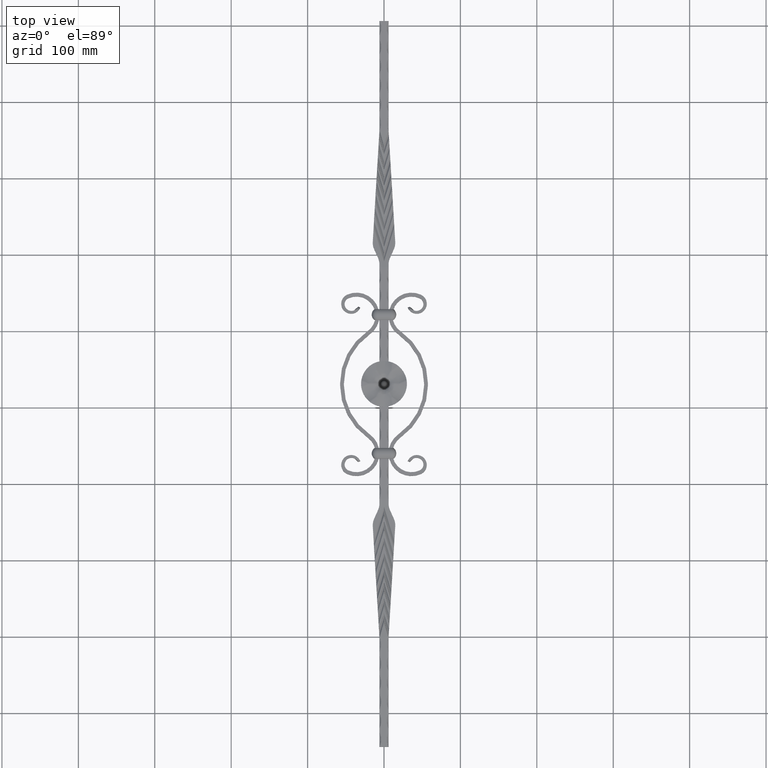
[diagram: clean part render]
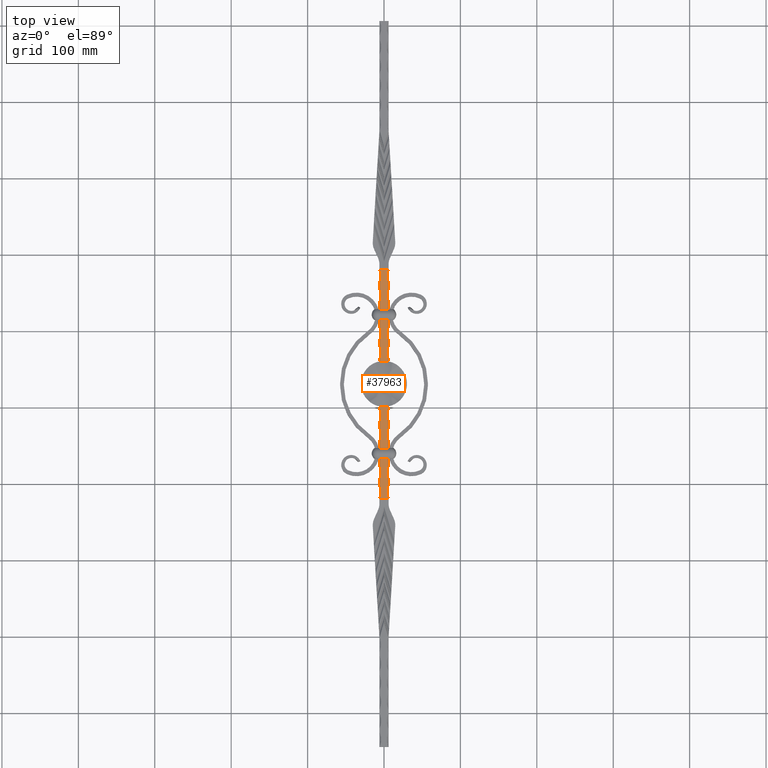
[diagram: same view with one face highlighted and labeled with its STEP entity id]
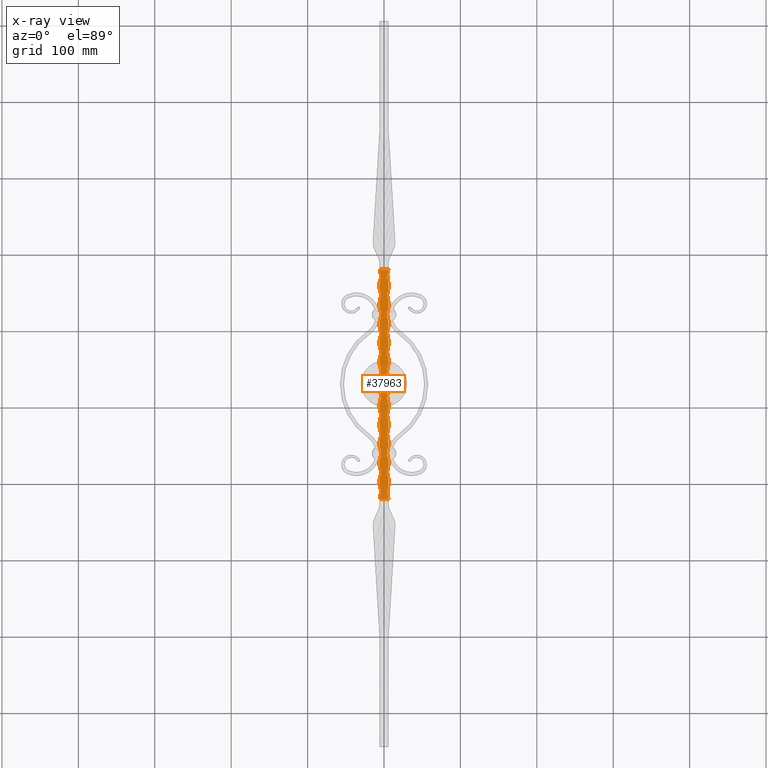
[diagram: x-ray of the same camera — body ghosted, the highlighted face saturated]
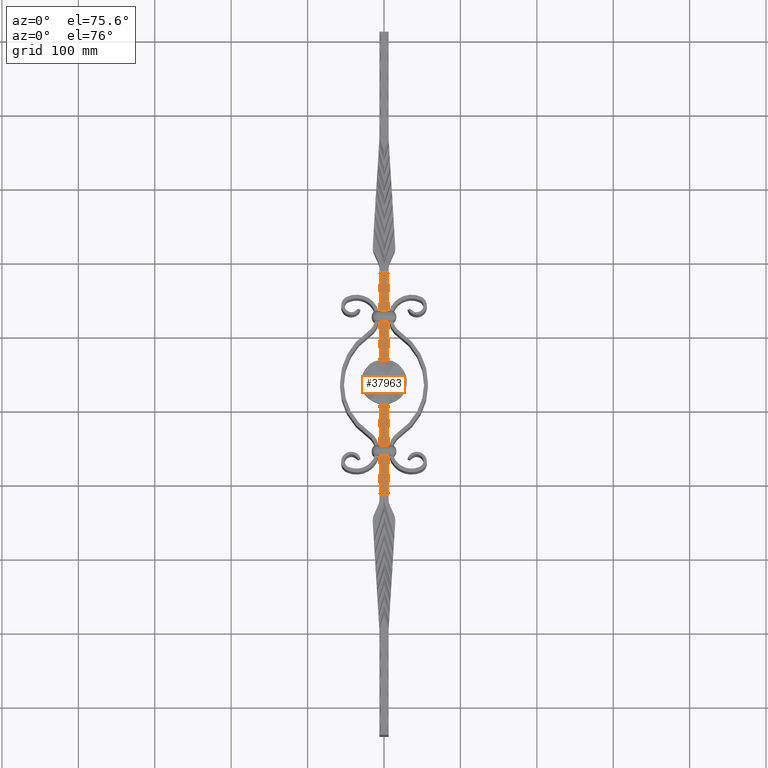
[diagram: same view with one face highlighted and labeled with its STEP entity id]
A machine part, top view. The second image highlights one B-rep face of the part: STEP entity #37963.
The next image is the same camera in x-ray: the body ghosted, the highlighted face saturated — about 0% of this face is hidden behind the body in this view.
A second angle (auxiliary view) of the same face is appended — the face is thin or edge-on in the first view.
In plain terms, the highlighted planar face has unit normal (0, 0, -1).
Its self-contained STEP definition (entity closure, byte-faithful):
#68 = ORIENTED_EDGE ( 'NONE', *, *, #21465, .T. ) ;
#285 = CARTESIAN_POINT ( 'NONE',  ( 30.00000000000001066, 515.0000000000000000, 5.999999999999986677 ) ) ;
#314 = VECTOR ( 'NONE', #4742, 1000.000000000000000 ) ;
#387 = VERTEX_POINT ( 'NONE', #28491 ) ;
#464 = AXIS2_PLACEMENT_3D ( 'NONE', #27704, #45721, #23917 ) ;
#523 = AXIS2_PLACEMENT_3D ( 'NONE', #285, #4230, #10890 ) ;
#950 = ORIENTED_EDGE ( 'NONE', *, *, #15052, .T. ) ;
#1014 = CARTESIAN_POINT ( 'NONE',  ( -6.000000000000001776, 450.0000000000021600, 6.000000000000012434 ) ) ;
#1157 = LINE ( 'NONE', #38857, #30017 ) ;
#1213 = ORIENTED_EDGE ( 'NONE', *, *, #41892, .T. ) ;
#1277 = CARTESIAN_POINT ( 'NONE',  ( -6.000000000000001776, 637.0799999999978809, 6.000000000000012434 ) ) ;
#1306 = DIRECTION ( 'NONE',  ( 0.000000000000000000, 0.000000000000000000, -1.000000000000000000 ) ) ;
#1316 = CARTESIAN_POINT ( 'NONE',  ( -6.000000000000001776, 455.0000000000000000, 5.999999999999065636 ) ) ;
#1520 = EDGE_CURVE ( 'NONE', #46279, #28511, #44600, .T. ) ;
#1544 = CARTESIAN_POINT ( 'NONE',  ( 6.000000000000001776, 455.0000000000000000, 6.000000000000012434 ) ) ;
#1814 = CARTESIAN_POINT ( 'NONE',  ( 6.000000000000001776, 531.0399999999999636, 5.999999999999999112 ) ) ;
#2017 = DIRECTION ( 'NONE',  ( -0.000000000000000000, 1.000000000000000000, -0.000000000000000000 ) ) ;
#2166 = ORIENTED_EDGE ( 'NONE', *, *, #21296, .F. ) ;
#2178 = ORIENTED_EDGE ( 'NONE', *, *, #35360, .F. ) ;
#2223 = VERTEX_POINT ( 'NONE', #40970 ) ;
#2801 = ORIENTED_EDGE ( 'NONE', *, *, #38667, .T. ) ;
#2822 = AXIS2_PLACEMENT_3D ( 'NONE', #20499, #45780, #45151 ) ;
#2825 = DIRECTION ( 'NONE',  ( -1.000000000000000000, 4.270088556250601108E-15, 0.000000000000000000 ) ) ;
#2826 = CARTESIAN_POINT ( 'NONE',  ( -6.000000000000001776, 632.0799999999998136, 5.999999999999118039 ) ) ;
#2889 = FACE_OUTER_BOUND ( 'NONE', #31284, .T. ) ;
#2898 = CARTESIAN_POINT ( 'NONE',  ( -5.593232469096428794, 381.0384321297871679, 5.999999999999231726 ) ) ;
#2903 = ORIENTED_EDGE ( 'NONE', *, *, #44691, .T. ) ;
#3013 = DIRECTION ( 'NONE',  ( -0.000000000000000000, 1.000000000000000000, -0.000000000000000000 ) ) ;
#3055 = LINE ( 'NONE', #16602, #4788 ) ;
#3060 = CARTESIAN_POINT ( 'NONE',  ( 6.000000000000001776, 531.0399999999999636, 5.999999999999999112 ) ) ;
#3143 = CARTESIAN_POINT ( 'NONE',  ( 6.000000000000001776, 405.0000000000000000, 6.000000000000012434 ) ) ;
#3269 = EDGE_CURVE ( 'NONE', #23279, #4831, #37709, .T. ) ;
#3301 = DIRECTION ( 'NONE',  ( -1.000000000000000000, -4.270088556250601108E-15, 0.000000000000000000 ) ) ;
#3384 = EDGE_CURVE ( 'NONE', #36348, #16617, #7244, .T. ) ;
#3401 = DIRECTION ( 'NONE',  ( -0.000000000000000000, 1.000000000000000000, -0.000000000000000000 ) ) ;
#3433 = ORIENTED_EDGE ( 'NONE', *, *, #17195, .T. ) ;
#3482 = DIRECTION ( 'NONE',  ( -1.000000000000000000, 0.000000000000000000, 0.000000000000000000 ) ) ;
#3617 = CARTESIAN_POINT ( 'NONE',  ( 6.000000000000001776, 430.0000000000000568, 6.000000000000012434 ) ) ;
#4037 = VERTEX_POINT ( 'NONE', #42055 ) ;
#4176 = VERTEX_POINT ( 'NONE', #3143 ) ;
#4221 = VERTEX_POINT ( 'NONE', #10736 ) ;
#4230 = DIRECTION ( 'NONE',  ( -0.000000000000000000, -0.000000000000000000, 1.000000000000000000 ) ) ;
#4323 = ORIENTED_EDGE ( 'NONE', *, *, #38616, .F. ) ;
#4459 = EDGE_CURVE ( 'NONE', #45011, #44063, #9466, .T. ) ;
#4509 = CARTESIAN_POINT ( 'NONE',  ( 5.593232469096428794, 381.0384321297871679, 5.999999999999993783 ) ) ;
#4551 = CARTESIAN_POINT ( 'NONE',  ( -6.000000000000001776, 505.0000000000000000, 5.999999999998961719 ) ) ;
#4584 = EDGE_CURVE ( 'NONE', #8706, #8706, #37137, .T. ) ;
#4742 = DIRECTION ( 'NONE',  ( -0.000000000000000000, -1.000000000000000000, -0.000000000000000000 ) ) ;
#4788 = VECTOR ( 'NONE', #37594, 1000.000000000000000 ) ;
#4830 = LINE ( 'NONE', #28642, #23524 ) ;
#4831 = VERTEX_POINT ( 'NONE', #4509 ) ;
#4852 = CARTESIAN_POINT ( 'NONE',  ( 6.000000000000001776, 582.0799999999999272, 6.000000000000012434 ) ) ;
#5265 = LINE ( 'NONE', #38354, #14325 ) ;
#5360 = DIRECTION ( 'NONE',  ( -1.000000000000000000, 0.000000000000000000, 0.000000000000000000 ) ) ;
#5725 = CIRCLE ( 'NONE', #44572, 26.00000000000000711 ) ;
#5830 = AXIS2_PLACEMENT_3D ( 'NONE', #44304, #1306, #26592 ) ;
#6115 = AXIS2_PLACEMENT_3D ( 'NONE', #28690, #17659, #42909 ) ;
#6254 = VECTOR ( 'NONE', #3013, 1000.000000000000000 ) ;
#6325 = DIRECTION ( 'NONE',  ( -0.000000000000000000, 1.000000000000000000, -0.000000000000000000 ) ) ;
#6454 = DIRECTION ( 'NONE',  ( -1.000000000000000000, 0.000000000000000000, 0.000000000000000000 ) ) ;
#6684 = EDGE_CURVE ( 'NONE', #25505, #44063, #12091, .T. ) ;
#6785 = EDGE_CURVE ( 'NONE', #4037, #38848, #38153, .T. ) ;
#7244 = LINE ( 'NONE', #24908, #21901 ) ;
#7666 = VERTEX_POINT ( 'NONE', #26324 ) ;
#7747 = EDGE_CURVE ( 'NONE', #46279, #4831, #5265, .T. ) ;
#7758 = EDGE_CURVE ( 'NONE', #17215, #4221, #13736, .T. ) ;
#8487 = ORIENTED_EDGE ( 'NONE', *, *, #27450, .F. ) ;
#8497 = CIRCLE ( 'NONE', #45126, 26.00000000000000711 ) ;
#8656 = CARTESIAN_POINT ( 'NONE',  ( -5.999999999999998224, 531.0399999999999636, 5.999999999999999112 ) ) ;
#8706 = VERTEX_POINT ( 'NONE', #11956 ) ;
#8959 = ORIENTED_EDGE ( 'NONE', *, *, #7747, .T. ) ;
#8969 = CARTESIAN_POINT ( 'NONE',  ( 30.00000000000001066, 490.0000000000000568, 5.999999999999988454 ) ) ;
#9004 = EDGE_CURVE ( 'NONE', #7666, #38848, #28374, .T. ) ;
#9088 = CIRCLE ( 'NONE', #27693, 26.00000000000000711 ) ;
#9139 = CARTESIAN_POINT ( 'NONE',  ( 6.000000000000001776, 662.0799999999999272, 5.999999999999984901 ) ) ;
#9159 = ORIENTED_EDGE ( 'NONE', *, *, #6684, .T. ) ;
#9214 = ORIENTED_EDGE ( 'NONE', *, *, #11553, .F. ) ;
#9302 = EDGE_CURVE ( 'NONE', #25640, #4221, #39483, .T. ) ;
#9379 = CARTESIAN_POINT ( 'NONE',  ( -6.000000000000001776, 475.0000000000022737, 6.000000000000012434 ) ) ;
#9444 = ORIENTED_EDGE ( 'NONE', *, *, #4584, .F. ) ;
#9449 = CARTESIAN_POINT ( 'NONE',  ( 30.00000000000001066, 390.0000000000000000, 5.999999999999993783 ) ) ;
#9466 = LINE ( 'NONE', #36272, #42806 ) ;
#9719 = CARTESIAN_POINT ( 'NONE',  ( -30.00000000000001066, 597.0799999999998136, 5.999999999999075406 ) ) ;
#9739 = FACE_BOUND ( 'NONE', #23335, .T. ) ;
#9883 = CARTESIAN_POINT ( 'NONE',  ( 6.000000000000001776, 531.0399999999999636, 5.999999999999999112 ) ) ;
#10022 = DIRECTION ( 'NONE',  ( -1.000000000000000000, 0.000000000000000000, 0.000000000000000000 ) ) ;
#10121 = EDGE_CURVE ( 'NONE', #17215, #16423, #22130, .T. ) ;
#10224 = VERTEX_POINT ( 'NONE', #30976 ) ;
#10617 = VERTEX_POINT ( 'NONE', #27926 ) ;
#10641 = ORIENTED_EDGE ( 'NONE', *, *, #37062, .T. ) ;
#10736 = CARTESIAN_POINT ( 'NONE',  ( -6.000000000000001776, 500.0000000000024443, 6.000000000000012434 ) ) ;
#10890 = DIRECTION ( 'NONE',  ( -1.000000000000000000, 0.000000000000000000, 0.000000000000000000 ) ) ;
#10935 = EDGE_CURVE ( 'NONE', #13003, #12000, #8497, .T. ) ;
#11226 = EDGE_CURVE ( 'NONE', #43411, #25505, #22635, .T. ) ;
#11323 = AXIS2_PLACEMENT_3D ( 'NONE', #14036, #43417, #46589 ) ;
#11329 = DIRECTION ( 'NONE',  ( -0.000000000000000000, -1.000000000000000000, -0.000000000000000000 ) ) ;
#11356 = VECTOR ( 'NONE', #28359, 1000.000000000000000 ) ;
#11454 = CARTESIAN_POINT ( 'NONE',  ( 6.000000000000001776, 475.0000000000000568, 5.999999999999980460 ) ) ;
#11553 = EDGE_CURVE ( 'NONE', #10617, #2223, #25444, .T. ) ;
#11602 = AXIS2_PLACEMENT_3D ( 'NONE', #28243, #28389, #38991 ) ;
#11625 = EDGE_CURVE ( 'NONE', #13637, #12431, #17534, .T. ) ;
#11691 = ORIENTED_EDGE ( 'NONE', *, *, #1520, .F. ) ;
#11803 = CIRCLE ( 'NONE', #2822, 26.00000000000000711 ) ;
#11874 = CARTESIAN_POINT ( 'NONE',  ( 30.00000000000001066, 440.0000000000000568, 5.999999999999991118 ) ) ;
#11956 = CARTESIAN_POINT ( 'NONE',  ( -3.714057980637027523, 531.0400000000001910, 6.000000000000002665 ) ) ;
#12000 = VERTEX_POINT ( 'NONE', #9379 ) ;
#12091 = CIRCLE ( 'NONE', #11323, 26.00000000000000711 ) ;
#12140 = ORIENTED_EDGE ( 'NONE', *, *, #3269, .F. ) ;
#12268 = CARTESIAN_POINT ( 'NONE',  ( 6.000000000000001776, 531.0399999999999636, 5.999999999999999112 ) ) ;
#12283 = CARTESIAN_POINT ( 'NONE',  ( 6.000000000000001776, 525.0000000000000000, 5.999999999999977796 ) ) ;
#12431 = VERTEX_POINT ( 'NONE', #12283 ) ;
#12575 = DIRECTION ( 'NONE',  ( -0.000000000000000000, -0.000000000000000000, 1.000000000000000000 ) ) ;
#12692 = CARTESIAN_POINT ( 'NONE',  ( 30.00000000000001066, 465.0000000000000000, 5.999999999999989342 ) ) ;
#12856 = VECTOR ( 'NONE', #26799, 1000.000000000000000 ) ;
#13003 = VERTEX_POINT ( 'NONE', #1316 ) ;
#13082 = ORIENTED_EDGE ( 'NONE', *, *, #46003, .T. ) ;
#13339 = VERTEX_POINT ( 'NONE', #1277 ) ;
#13358 = AXIS2_PLACEMENT_3D ( 'NONE', #26787, #26947, #31074 ) ;
#13530 = VECTOR ( 'NONE', #24401, 1000.000000000000000 ) ;
#13576 = ORIENTED_EDGE ( 'NONE', *, *, #41781, .F. ) ;
#13632 = LINE ( 'NONE', #17150, #14221 ) ;
#13637 = VERTEX_POINT ( 'NONE', #43437 ) ;
#13736 = LINE ( 'NONE', #28208, #27900 ) ;
#13757 = VERTEX_POINT ( 'NONE', #22593 ) ;
#14036 = CARTESIAN_POINT ( 'NONE',  ( 30.00000000000001066, 672.0799999999999272, 5.999999999999993783 ) ) ;
#14070 = CIRCLE ( 'NONE', #11602, 26.00000000000000711 ) ;
#14075 = EDGE_CURVE ( 'NONE', #16365, #4176, #14070, .T. ) ;
#14154 = DIRECTION ( 'NONE',  ( 1.000000000000000000, 0.000000000000000000, 0.000000000000000000 ) ) ;
#14211 = VECTOR ( 'NONE', #11329, 1000.000000000000000 ) ;
#14221 = VECTOR ( 'NONE', #35120, 1000.000000000000000 ) ;
#14325 = VECTOR ( 'NONE', #45602, 1000.000000000000000 ) ;
#14472 = EDGE_CURVE ( 'NONE', #387, #36046, #32755, .T. ) ;
#14540 = LINE ( 'NONE', #8656, #26435 ) ;
#14635 = ORIENTED_EDGE ( 'NONE', *, *, #9004, .T. ) ;
#14849 = CIRCLE ( 'NONE', #6115, 26.00000000000000711 ) ;
#14871 = AXIS2_PLACEMENT_3D ( 'NONE', #9719, #42558, #10022 ) ;
#14971 = VECTOR ( 'NONE', #17564, 1000.000000000000000 ) ;
#15052 = EDGE_CURVE ( 'NONE', #25468, #16487, #37216, .T. ) ;
#15201 = EDGE_CURVE ( 'NONE', #36348, #13339, #42298, .T. ) ;
#15608 = LINE ( 'NONE', #40149, #314 ) ;
#15614 = ORIENTED_EDGE ( 'NONE', *, *, #23048, .T. ) ;
#15660 = LINE ( 'NONE', #12268, #12856 ) ;
#15821 = ORIENTED_EDGE ( 'NONE', *, *, #15201, .T. ) ;
#15857 = DIRECTION ( 'NONE',  ( -0.000000000000000000, -0.000000000000000000, 1.000000000000000000 ) ) ;
#16078 = CARTESIAN_POINT ( 'NONE',  ( -6.000000000000001776, 582.0799999999999272, 5.999999999999014122 ) ) ;
#16082 = DIRECTION ( 'NONE',  ( -0.000000000000000000, -0.000000000000000000, 1.000000000000000000 ) ) ;
#16092 = ORIENTED_EDGE ( 'NONE', *, *, #4459, .F. ) ;
#16133 = DIRECTION ( 'NONE',  ( -1.000000000000000000, 0.000000000000000000, 0.000000000000000000 ) ) ;
#16216 = AXIS2_PLACEMENT_3D ( 'NONE', #32067, #17707, #3301 ) ;
#16278 = VERTEX_POINT ( 'NONE', #18652 ) ;
#16365 = VERTEX_POINT ( 'NONE', #40587 ) ;
#16423 = VERTEX_POINT ( 'NONE', #33614 ) ;
#16442 = CARTESIAN_POINT ( 'NONE',  ( -6.000000000000001776, 400.0000000000018758, 6.000000000000012434 ) ) ;
#16487 = VERTEX_POINT ( 'NONE', #19565 ) ;
#16602 = CARTESIAN_POINT ( 'NONE',  ( 6.000000000000001776, 531.0399999999999636, 5.999999999999999112 ) ) ;
#16617 = VERTEX_POINT ( 'NONE', #35661 ) ;
#16747 = ORIENTED_EDGE ( 'NONE', *, *, #3384, .F. ) ;
#16787 = VERTEX_POINT ( 'NONE', #33094 ) ;
#17044 = VERTEX_POINT ( 'NONE', #23626 ) ;
#17150 = CARTESIAN_POINT ( 'NONE',  ( -5.999999999999998224, 531.0399999999999636, 5.999999999999999112 ) ) ;
#17176 = DIRECTION ( 'NONE',  ( -0.000000000000000000, -1.000000000000000000, -0.000000000000000000 ) ) ;
#17178 = VECTOR ( 'NONE', #41681, 1000.000000000000000 ) ;
#17195 = EDGE_CURVE ( 'NONE', #13003, #46107, #4830, .T. ) ;
#17215 = VERTEX_POINT ( 'NONE', #4551 ) ;
#17254 = CARTESIAN_POINT ( 'NONE',  ( 6.000000000000001776, 531.0399999999999636, 5.999999999999999112 ) ) ;
#17534 = LINE ( 'NONE', #35150, #41257 ) ;
#17552 = DIRECTION ( 'NONE',  ( -0.000000000000000000, 1.000000000000000000, -0.000000000000000000 ) ) ;
#17564 = DIRECTION ( 'NONE',  ( -0.000000000000000000, 1.000000000000000000, -0.000000000000000000 ) ) ;
#17659 = DIRECTION ( 'NONE',  ( 0.000000000000000000, 0.000000000000000000, -1.000000000000000000 ) ) ;
#17707 = DIRECTION ( 'NONE',  ( 0.000000000000000000, 0.000000000000000000, -1.000000000000000000 ) ) ;
#17954 = ORIENTED_EDGE ( 'NONE', *, *, #44737, .T. ) ;
#17960 = ORIENTED_EDGE ( 'NONE', *, *, #18456, .F. ) ;
#18152 = ORIENTED_EDGE ( 'NONE', *, *, #29865, .F. ) ;
#18208 = CARTESIAN_POINT ( 'NONE',  ( -5.593232469096428794, 681.0415678702127025, 5.999999999999231726 ) ) ;
#18399 = VERTEX_POINT ( 'NONE', #1544 ) ;
#18456 = EDGE_CURVE ( 'NONE', #36508, #10617, #3055, .T. ) ;
#18587 = CARTESIAN_POINT ( 'NONE',  ( -6.000000000000001776, 425.0000000000019895, 6.000000000000012434 ) ) ;
#18652 = CARTESIAN_POINT ( 'NONE',  ( 6.000000000000001776, 587.0799999999998136, 5.999999999999980460 ) ) ;
#18656 = VERTEX_POINT ( 'NONE', #11454 ) ;
#18784 = LINE ( 'NONE', #44156, #44788 ) ;
#18785 = VECTOR ( 'NONE', #6325, 1000.000000000000000 ) ;
#19304 = VERTEX_POINT ( 'NONE', #4852 ) ;
#19325 = CARTESIAN_POINT ( 'NONE',  ( 6.000000000000001776, 637.0799999999998136, 5.999999999999983125 ) ) ;
#19340 = PLANE ( 'NONE',  #5830 ) ;
#19494 = CARTESIAN_POINT ( 'NONE',  ( 6.000000000000001776, 505.0000000000000000, 6.000000000000012434 ) ) ;
#19527 = VERTEX_POINT ( 'NONE', #20506 ) ;
#19565 = CARTESIAN_POINT ( 'NONE',  ( -6.000000000000001776, 562.0799999999974261, 6.000000000000012434 ) ) ;
#19627 = EDGE_CURVE ( 'NONE', #29877, #43411, #14849, .T. ) ;
#19774 = LINE ( 'NONE', #24694, #6254 ) ;
#19851 = EDGE_CURVE ( 'NONE', #13757, #10224, #43093, .T. ) ;
#20014 = ORIENTED_EDGE ( 'NONE', *, *, #37482, .T. ) ;
#20199 = CIRCLE ( 'NONE', #26217, 26.00000000000000711 ) ;
#20236 = DIRECTION ( 'NONE',  ( -1.000000000000000000, 4.270088556250601108E-15, 0.000000000000000000 ) ) ;
#20348 = ORIENTED_EDGE ( 'NONE', *, *, #40093, .T. ) ;
#20499 = CARTESIAN_POINT ( 'NONE',  ( -30.00000000000001066, 672.0799999999999272, 5.999999999999231726 ) ) ;
#20506 = CARTESIAN_POINT ( 'NONE',  ( -6.000000000000001776, 537.0799999999974261, 6.000000000000012434 ) ) ;
#20783 = AXIS2_PLACEMENT_3D ( 'NONE', #27499, #38586, #2825 ) ;
#21017 = DIRECTION ( 'NONE',  ( -1.000000000000000000, 4.270088556250601108E-15, 0.000000000000000000 ) ) ;
#21020 = EDGE_CURVE ( 'NONE', #4176, #23279, #41385, .T. ) ;
#21051 = ORIENTED_EDGE ( 'NONE', *, *, #24691, .T. ) ;
#21182 = AXIS2_PLACEMENT_3D ( 'NONE', #26700, #41082, #37312 ) ;
#21204 = ORIENTED_EDGE ( 'NONE', *, *, #7758, .T. ) ;
#21274 = CARTESIAN_POINT ( 'NONE',  ( -6.000000000000001776, 480.0000000000000568, 5.999999999999014122 ) ) ;
#21296 = EDGE_CURVE ( 'NONE', #32186, #16365, #18784, .T. ) ;
#21465 = EDGE_CURVE ( 'NONE', #19527, #16423, #13632, .T. ) ;
#21793 = CARTESIAN_POINT ( 'NONE',  ( -5.999999999999998224, 531.0399999999999636, 5.999999999999999112 ) ) ;
#21901 = VECTOR ( 'NONE', #3401, 1000.000000000000000 ) ;
#22130 = CIRCLE ( 'NONE', #21182, 26.00000000000000711 ) ;
#22182 = VECTOR ( 'NONE', #35182, 1000.000000000000000 ) ;
#22506 = LINE ( 'NONE', #1814, #43983 ) ;
#22593 = CARTESIAN_POINT ( 'NONE',  ( -6.000000000000001776, 607.0799999999998136, 5.999999999999065636 ) ) ;
#22635 = LINE ( 'NONE', #23698, #42971 ) ;
#22804 = DIRECTION ( 'NONE',  ( -1.000000000000000000, 0.000000000000000000, 0.000000000000000000 ) ) ;
#22863 = CIRCLE ( 'NONE', #38502, 26.00000000000000711 ) ;
#22930 = ORIENTED_EDGE ( 'NONE', *, *, #9302, .F. ) ;
#23048 = EDGE_CURVE ( 'NONE', #40497, #19304, #9088, .T. ) ;
#23279 = VERTEX_POINT ( 'NONE', #26113 ) ;
#23335 = EDGE_LOOP ( 'NONE', ( #9444 ) ) ;
#23524 = VECTOR ( 'NONE', #44214, 1000.000000000000000 ) ;
#23626 = CARTESIAN_POINT ( 'NONE',  ( 6.000000000000001776, 632.0799999999998136, 6.000000000000012434 ) ) ;
#23687 = DIRECTION ( 'NONE',  ( -0.000000000000000000, -0.000000000000000000, 1.000000000000000000 ) ) ;
#23698 = CARTESIAN_POINT ( 'NONE',  ( 6.000000000000001776, 531.0399999999999636, 5.999999999999999112 ) ) ;
#23917 = DIRECTION ( 'NONE',  ( -1.000000000000000000, -2.135044278125300554E-15, 0.000000000000000000 ) ) ;
#24001 = EDGE_CURVE ( 'NONE', #25468, #10224, #42542, .T. ) ;
#24014 = DIRECTION ( 'NONE',  ( -0.000000000000000000, -0.000000000000000000, 1.000000000000000000 ) ) ;
#24401 = DIRECTION ( 'NONE',  ( -0.000000000000000000, 1.000000000000000000, -0.000000000000000000 ) ) ;
#24486 = EDGE_CURVE ( 'NONE', #18399, #16787, #26645, .T. ) ;
#24494 = CIRCLE ( 'NONE', #34163, 26.00000000000000711 ) ;
#24655 = CARTESIAN_POINT ( 'NONE',  ( -6.000000000000001776, 612.0799999999977672, 6.000000000000012434 ) ) ;
#24691 = EDGE_CURVE ( 'NONE', #16278, #387, #35141, .T. ) ;
#24694 = CARTESIAN_POINT ( 'NONE',  ( -5.999999999999998224, 531.0399999999999636, 5.999999999999999112 ) ) ;
#24908 = CARTESIAN_POINT ( 'NONE',  ( -5.999999999999998224, 531.0399999999999636, 5.999999999999999112 ) ) ;
#25200 = AXIS2_PLACEMENT_3D ( 'NONE', #9449, #16082, #26952 ) ;
#25444 = CIRCLE ( 'NONE', #32109, 26.00000000000000711 ) ;
#25468 = VERTEX_POINT ( 'NONE', #16078 ) ;
#25505 = VERTEX_POINT ( 'NONE', #9139 ) ;
#25640 = VERTEX_POINT ( 'NONE', #21274 ) ;
#26042 = EDGE_CURVE ( 'NONE', #13757, #45956, #19774, .T. ) ;
#26113 = CARTESIAN_POINT ( 'NONE',  ( 6.000000000000001776, 400.0000000000000000, 5.999999999999984901 ) ) ;
#26217 = AXIS2_PLACEMENT_3D ( 'NONE', #12692, #31192, #27393 ) ;
#26320 = DIRECTION ( 'NONE',  ( -0.000000000000000000, 1.000000000000000000, -0.000000000000000000 ) ) ;
#26324 = CARTESIAN_POINT ( 'NONE',  ( -6.000000000000001776, 430.0000000000000568, 5.999999999999118039 ) ) ;
#26435 = VECTOR ( 'NONE', #26320, 1000.000000000000000 ) ;
#26543 = DIRECTION ( 'NONE',  ( 0.000000000000000000, 0.000000000000000000, -1.000000000000000000 ) ) ;
#26592 = DIRECTION ( 'NONE',  ( -1.000000000000000000, 0.000000000000000000, -0.000000000000000000 ) ) ;
#26645 = LINE ( 'NONE', #3060, #11356 ) ;
#26700 = CARTESIAN_POINT ( 'NONE',  ( -30.00000000000001066, 515.0000000000000000, 5.999999999998971489 ) ) ;
#26725 = ORIENTED_EDGE ( 'NONE', *, *, #26042, .F. ) ;
#26787 = CARTESIAN_POINT ( 'NONE',  ( -30.00000000000001066, 622.0799999999998136, 5.999999999999127809 ) ) ;
#26799 = DIRECTION ( 'NONE',  ( -0.000000000000000000, 1.000000000000000000, -0.000000000000000000 ) ) ;
#26893 = CARTESIAN_POINT ( 'NONE',  ( 6.000000000000001776, 562.0799999999999272, 5.999999999999979572 ) ) ;
#26933 = CARTESIAN_POINT ( 'NONE',  ( 30.00000000000001066, 622.0799999999998136, 5.999999999999991118 ) ) ;
#26947 = DIRECTION ( 'NONE',  ( 0.000000000000000000, 0.000000000000000000, -1.000000000000000000 ) ) ;
#26952 = DIRECTION ( 'NONE',  ( -1.000000000000000000, 0.000000000000000000, 0.000000000000000000 ) ) ;
#27272 = AXIS2_PLACEMENT_3D ( 'NONE', #38249, #24014, #5360 ) ;
#27297 = CARTESIAN_POINT ( 'NONE',  ( 6.000000000000001776, 531.0399999999999636, 5.999999999999999112 ) ) ;
#27393 = DIRECTION ( 'NONE',  ( -1.000000000000000000, 0.000000000000000000, 0.000000000000000000 ) ) ;
#27450 = EDGE_CURVE ( 'NONE', #43681, #13339, #14540, .T. ) ;
#27499 = CARTESIAN_POINT ( 'NONE',  ( -30.00000000000001066, 572.0799999999999272, 5.999999999999023892 ) ) ;
#27552 = EDGE_CURVE ( 'NONE', #2223, #18656, #22506, .T. ) ;
#27693 = AXIS2_PLACEMENT_3D ( 'NONE', #34210, #41481, #37863 ) ;
#27704 = CARTESIAN_POINT ( 'NONE',  ( -30.00000000000001066, 415.0000000000000568, 5.999999999999179323 ) ) ;
#27896 = DIRECTION ( 'NONE',  ( -0.000000000000000000, -1.000000000000000000, -0.000000000000000000 ) ) ;
#27900 = VECTOR ( 'NONE', #27896, 1000.000000000000000 ) ;
#27926 = CARTESIAN_POINT ( 'NONE',  ( 6.000000000000001776, 500.0000000000000000, 5.999999999999979572 ) ) ;
#28208 = CARTESIAN_POINT ( 'NONE',  ( -5.999999999999998224, 531.0399999999999636, 5.999999999999999112 ) ) ;
#28243 = CARTESIAN_POINT ( 'NONE',  ( 30.00000000000001066, 415.0000000000000568, 5.999999999999992006 ) ) ;
#28359 = DIRECTION ( 'NONE',  ( -0.000000000000000000, -1.000000000000000000, -0.000000000000000000 ) ) ;
#28374 = LINE ( 'NONE', #21793, #14211 ) ;
#28389 = DIRECTION ( 'NONE',  ( -0.000000000000000000, -0.000000000000000000, 1.000000000000000000 ) ) ;
#28491 = CARTESIAN_POINT ( 'NONE',  ( 6.000000000000001776, 607.0799999999998136, 6.000000000000012434 ) ) ;
#28511 = VERTEX_POINT ( 'NONE', #16442 ) ;
#28559 = CIRCLE ( 'NONE', #36044, 26.00000000000000711 ) ;
#28642 = CARTESIAN_POINT ( 'NONE',  ( -5.999999999999998224, 531.0399999999999636, 5.999999999999999112 ) ) ;
#28690 = CARTESIAN_POINT ( 'NONE',  ( 30.00000000000001066, 647.0799999999999272, 5.999999999999992006 ) ) ;
#29865 = EDGE_CURVE ( 'NONE', #16787, #32186, #28559, .T. ) ;
#29877 = VERTEX_POINT ( 'NONE', #19325 ) ;
#30017 = VECTOR ( 'NONE', #17552, 1000.000000000000000 ) ;
#30373 = DIRECTION ( 'NONE',  ( -1.000000000000000000, 0.000000000000000000, 0.000000000000000000 ) ) ;
#30976 = CARTESIAN_POINT ( 'NONE',  ( -6.000000000000001776, 587.0799999999976535, 6.000000000000012434 ) ) ;
#31074 = DIRECTION ( 'NONE',  ( -1.000000000000000000, -4.270088556250601108E-15, 0.000000000000000000 ) ) ;
#31192 = DIRECTION ( 'NONE',  ( -0.000000000000000000, -0.000000000000000000, 1.000000000000000000 ) ) ;
#31284 = EDGE_LOOP ( 'NONE', ( #11691, #8959, #12140, #38589, #45258, #2166, #18152, #40803, #13576, #46899, #9214, #17960, #2178, #41549, #17954, #44914, #15614, #44161, #21051, #45091, #2801, #13082, #40533, #46898, #9159, #16092, #20348, #16747, #15821, #8487, #20014, #26725, #44605, #45672, #950, #4323, #10641, #68, #33321, #21204, #22930, #2903, #41477, #3433, #35836, #14635, #35597, #1213 ) ) ;
#31345 = DIRECTION ( 'NONE',  ( -0.000000000000000000, -1.000000000000000000, -0.000000000000000000 ) ) ;
#31565 = CARTESIAN_POINT ( 'NONE',  ( -30.00000000000001066, 490.0000000000000568, 5.999999999999023892 ) ) ;
#31717 = DIRECTION ( 'NONE',  ( -0.000000000000000000, -0.000000000000000000, 1.000000000000000000 ) ) ;
#32067 = CARTESIAN_POINT ( 'NONE',  ( -30.00000000000001066, 647.0799999999999272, 5.999999999999179323 ) ) ;
#32109 = AXIS2_PLACEMENT_3D ( 'NONE', #8969, #12575, #37853 ) ;
#32186 = VERTEX_POINT ( 'NONE', #3617 ) ;
#32410 = EDGE_CURVE ( 'NONE', #36729, #40497, #45953, .T. ) ;
#32755 = LINE ( 'NONE', #9883, #13530 ) ;
#33094 = CARTESIAN_POINT ( 'NONE',  ( 6.000000000000001776, 450.0000000000000568, 5.999999999999982236 ) ) ;
#33321 = ORIENTED_EDGE ( 'NONE', *, *, #10121, .F. ) ;
#33595 = CARTESIAN_POINT ( 'NONE',  ( 6.000000000000001776, 612.0799999999998136, 5.999999999999982236 ) ) ;
#33614 = CARTESIAN_POINT ( 'NONE',  ( -6.000000000000001776, 525.0000000000025011, 6.000000000000012434 ) ) ;
#33640 = CARTESIAN_POINT ( 'NONE',  ( 30.00000000000001066, 547.0799999999999272, 5.999999999999986677 ) ) ;
#33679 = CARTESIAN_POINT ( 'NONE',  ( 30.00000000000001066, 597.0799999999998136, 5.999999999999989342 ) ) ;
#34163 = AXIS2_PLACEMENT_3D ( 'NONE', #38420, #35223, #20236 ) ;
#34210 = CARTESIAN_POINT ( 'NONE',  ( 30.00000000000001066, 572.0799999999999272, 5.999999999999988454 ) ) ;
#34664 = DIRECTION ( 'NONE',  ( -0.000000000000000000, -1.000000000000000000, -0.000000000000000000 ) ) ;
#34802 = VERTEX_POINT ( 'NONE', #45909 ) ;
#35026 = DIRECTION ( 'NONE',  ( -1.000000000000000000, -4.270088556250601108E-15, 0.000000000000000000 ) ) ;
#35085 = AXIS2_PLACEMENT_3D ( 'NONE', #31565, #31717, #35026 ) ;
#35120 = DIRECTION ( 'NONE',  ( -0.000000000000000000, -1.000000000000000000, -0.000000000000000000 ) ) ;
#35141 = CIRCLE ( 'NONE', #43798, 26.00000000000000711 ) ;
#35150 = CARTESIAN_POINT ( 'NONE',  ( 6.000000000000001776, 531.0399999999999636, 5.999999999999999112 ) ) ;
#35182 = DIRECTION ( 'NONE',  ( -0.000000000000000000, -1.000000000000000000, -0.000000000000000000 ) ) ;
#35223 = DIRECTION ( 'NONE',  ( 0.000000000000000000, 0.000000000000000000, -1.000000000000000000 ) ) ;
#35238 = DIRECTION ( 'NONE',  ( -0.000000000000000000, -0.000000000000000000, 1.000000000000000000 ) ) ;
#35360 = EDGE_CURVE ( 'NONE', #12431, #36508, #37579, .T. ) ;
#35597 = ORIENTED_EDGE ( 'NONE', *, *, #6785, .F. ) ;
#35661 = CARTESIAN_POINT ( 'NONE',  ( -6.000000000000001776, 662.0799999999979946, 6.000000000000012434 ) ) ;
#35836 = ORIENTED_EDGE ( 'NONE', *, *, #45895, .F. ) ;
#35870 = CARTESIAN_POINT ( 'NONE',  ( -30.00000000000001066, 465.0000000000000000, 5.999999999999075406 ) ) ;
#36044 = AXIS2_PLACEMENT_3D ( 'NONE', #11874, #15857, #30373 ) ;
#36046 = VERTEX_POINT ( 'NONE', #33595 ) ;
#36272 = CARTESIAN_POINT ( 'NONE',  ( -5.999999999999998224, 681.0415678702127025, 6.000000000000002665 ) ) ;
#36348 = VERTEX_POINT ( 'NONE', #42464 ) ;
#36508 = VERTEX_POINT ( 'NONE', #19494 ) ;
#36729 = VERTEX_POINT ( 'NONE', #46029 ) ;
#37011 = LINE ( 'NONE', #17254, #14971 ) ;
#37062 = EDGE_CURVE ( 'NONE', #34802, #19527, #24494, .T. ) ;
#37137 = CIRCLE ( 'NONE', #44293, 3.714057980637027523 ) ;
#37216 = CIRCLE ( 'NONE', #20783, 26.00000000000000711 ) ;
#37312 = DIRECTION ( 'NONE',  ( -1.000000000000000000, -4.270088556250601108E-15, 0.000000000000000000 ) ) ;
#37482 = EDGE_CURVE ( 'NONE', #43681, #45956, #42538, .T. ) ;
#37579 = CIRCLE ( 'NONE', #523, 26.00000000000000711 ) ;
#37594 = DIRECTION ( 'NONE',  ( -0.000000000000000000, -1.000000000000000000, -0.000000000000000000 ) ) ;
#37709 = CIRCLE ( 'NONE', #25200, 26.00000000000000711 ) ;
#37853 = DIRECTION ( 'NONE',  ( -1.000000000000000000, 0.000000000000000000, 0.000000000000000000 ) ) ;
#37863 = DIRECTION ( 'NONE',  ( -1.000000000000000000, 0.000000000000000000, 0.000000000000000000 ) ) ;
#37963 = ADVANCED_FACE ( 'NONE', ( #9739, #2889 ), #19340, .F. ) ;
#38063 = CARTESIAN_POINT ( 'NONE',  ( 0.000000000000000000, 531.0400000000001910, 6.000000000000002665 ) ) ;
#38153 = CIRCLE ( 'NONE', #464, 26.00000000000000711 ) ;
#38249 = CARTESIAN_POINT ( 'NONE',  ( -30.00000000000001066, 390.0000000000000000, 5.999999999999231726 ) ) ;
#38354 = CARTESIAN_POINT ( 'NONE',  ( -5.999999999999998224, 381.0384321297871679, 6.000000000000002665 ) ) ;
#38420 = CARTESIAN_POINT ( 'NONE',  ( -30.00000000000001066, 547.0799999999999272, 5.999999999998971489 ) ) ;
#38502 = AXIS2_PLACEMENT_3D ( 'NONE', #42808, #35238, #21017 ) ;
#38586 = DIRECTION ( 'NONE',  ( 0.000000000000000000, 0.000000000000000000, -1.000000000000000000 ) ) ;
#38589 = ORIENTED_EDGE ( 'NONE', *, *, #21020, .F. ) ;
#38616 = EDGE_CURVE ( 'NONE', #34802, #16487, #1157, .T. ) ;
#38667 = EDGE_CURVE ( 'NONE', #36046, #17044, #5725, .T. ) ;
#38848 = VERTEX_POINT ( 'NONE', #18587 ) ;
#38857 = CARTESIAN_POINT ( 'NONE',  ( -5.999999999999998224, 531.0399999999999636, 5.999999999999999112 ) ) ;
#38991 = DIRECTION ( 'NONE',  ( -1.000000000000000000, 0.000000000000000000, 0.000000000000000000 ) ) ;
#39483 = CIRCLE ( 'NONE', #35085, 26.00000000000000711 ) ;
#39585 = CARTESIAN_POINT ( 'NONE',  ( 5.593232469096428794, 681.0415678702127025, 5.999999999999993783 ) ) ;
#39919 = LINE ( 'NONE', #42094, #43336 ) ;
#40093 = EDGE_CURVE ( 'NONE', #45011, #16617, #11803, .T. ) ;
#40149 = CARTESIAN_POINT ( 'NONE',  ( -5.999999999999998224, 531.0399999999999636, 5.999999999999999112 ) ) ;
#40497 = VERTEX_POINT ( 'NONE', #26893 ) ;
#40533 = ORIENTED_EDGE ( 'NONE', *, *, #19627, .T. ) ;
#40543 = AXIS2_PLACEMENT_3D ( 'NONE', #33640, #26543, #16133 ) ;
#40587 = CARTESIAN_POINT ( 'NONE',  ( 6.000000000000001776, 425.0000000000000568, 5.999999999999983125 ) ) ;
#40803 = ORIENTED_EDGE ( 'NONE', *, *, #24486, .F. ) ;
#40970 = CARTESIAN_POINT ( 'NONE',  ( 6.000000000000001776, 480.0000000000000000, 6.000000000000012434 ) ) ;
#41043 = CIRCLE ( 'NONE', #40543, 26.00000000000000711 ) ;
#41082 = DIRECTION ( 'NONE',  ( -0.000000000000000000, -0.000000000000000000, 1.000000000000000000 ) ) ;
#41092 = CARTESIAN_POINT ( 'NONE',  ( 6.000000000000001776, 657.0799999999999272, 6.000000000000012434 ) ) ;
#41257 = VECTOR ( 'NONE', #17176, 1000.000000000000000 ) ;
#41385 = LINE ( 'NONE', #45786, #22182 ) ;
#41477 = ORIENTED_EDGE ( 'NONE', *, *, #10935, .F. ) ;
#41481 = DIRECTION ( 'NONE',  ( 0.000000000000000000, 0.000000000000000000, -1.000000000000000000 ) ) ;
#41549 = ORIENTED_EDGE ( 'NONE', *, *, #11625, .F. ) ;
#41681 = DIRECTION ( 'NONE',  ( -0.000000000000000000, 1.000000000000000000, -0.000000000000000000 ) ) ;
#41686 = DIRECTION ( 'NONE',  ( -1.000000000000000000, 0.000000000000000000, 0.000000000000000000 ) ) ;
#41781 = EDGE_CURVE ( 'NONE', #18656, #18399, #20199, .T. ) ;
#41892 = EDGE_CURVE ( 'NONE', #4037, #28511, #39919, .T. ) ;
#42055 = CARTESIAN_POINT ( 'NONE',  ( -6.000000000000001776, 405.0000000000000000, 5.999999999999170441 ) ) ;
#42094 = CARTESIAN_POINT ( 'NONE',  ( -5.999999999999998224, 531.0399999999999636, 5.999999999999999112 ) ) ;
#42176 = CARTESIAN_POINT ( 'NONE',  ( -5.999999999999998224, 531.0399999999999636, 5.999999999999999112 ) ) ;
#42298 = CIRCLE ( 'NONE', #16216, 26.00000000000000711 ) ;
#42464 = CARTESIAN_POINT ( 'NONE',  ( -6.000000000000001776, 657.0799999999999272, 5.999999999999170441 ) ) ;
#42538 = CIRCLE ( 'NONE', #13358, 26.00000000000000711 ) ;
#42542 = LINE ( 'NONE', #42176, #18785 ) ;
#42558 = DIRECTION ( 'NONE',  ( 0.000000000000000000, 0.000000000000000000, -1.000000000000000000 ) ) ;
#42806 = VECTOR ( 'NONE', #14154, 1000.000000000000000 ) ;
#42808 = CARTESIAN_POINT ( 'NONE',  ( -30.00000000000001066, 440.0000000000000568, 5.999999999999127809 ) ) ;
#42909 = DIRECTION ( 'NONE',  ( -1.000000000000000000, 0.000000000000000000, 0.000000000000000000 ) ) ;
#42971 = VECTOR ( 'NONE', #2017, 1000.000000000000000 ) ;
#42990 = DIRECTION ( 'NONE',  ( -0.000000000000000000, -0.000000000000000000, 1.000000000000000000 ) ) ;
#43093 = CIRCLE ( 'NONE', #14871, 26.00000000000000711 ) ;
#43336 = VECTOR ( 'NONE', #31345, 1000.000000000000000 ) ;
#43411 = VERTEX_POINT ( 'NONE', #41092 ) ;
#43417 = DIRECTION ( 'NONE',  ( 0.000000000000000000, 0.000000000000000000, -1.000000000000000000 ) ) ;
#43437 = CARTESIAN_POINT ( 'NONE',  ( 6.000000000000001776, 537.0799999999999272, 5.999999999999977796 ) ) ;
#43681 = VERTEX_POINT ( 'NONE', #2826 ) ;
#43798 = AXIS2_PLACEMENT_3D ( 'NONE', #33679, #44434, #22804 ) ;
#43978 = EDGE_CURVE ( 'NONE', #19304, #16278, #15660, .T. ) ;
#43983 = VECTOR ( 'NONE', #45276, 1000.000000000000000 ) ;
#44063 = VERTEX_POINT ( 'NONE', #39585 ) ;
#44156 = CARTESIAN_POINT ( 'NONE',  ( 6.000000000000001776, 531.0399999999999636, 5.999999999999999112 ) ) ;
#44161 = ORIENTED_EDGE ( 'NONE', *, *, #43978, .T. ) ;
#44214 = DIRECTION ( 'NONE',  ( -0.000000000000000000, -1.000000000000000000, -0.000000000000000000 ) ) ;
#44293 = AXIS2_PLACEMENT_3D ( 'NONE', #38063, #23687, #41686 ) ;
#44304 = CARTESIAN_POINT ( 'NONE',  ( -5.999999999999998224, 200.0000000000000000, 6.000000000000002665 ) ) ;
#44434 = DIRECTION ( 'NONE',  ( 0.000000000000000000, 0.000000000000000000, -1.000000000000000000 ) ) ;
#44572 = AXIS2_PLACEMENT_3D ( 'NONE', #26933, #46240, #6454 ) ;
#44600 = CIRCLE ( 'NONE', #27272, 26.00000000000000711 ) ;
#44605 = ORIENTED_EDGE ( 'NONE', *, *, #19851, .T. ) ;
#44691 = EDGE_CURVE ( 'NONE', #25640, #12000, #15608, .T. ) ;
#44737 = EDGE_CURVE ( 'NONE', #13637, #36729, #41043, .T. ) ;
#44788 = VECTOR ( 'NONE', #34664, 1000.000000000000000 ) ;
#44914 = ORIENTED_EDGE ( 'NONE', *, *, #32410, .T. ) ;
#45011 = VERTEX_POINT ( 'NONE', #18208 ) ;
#45091 = ORIENTED_EDGE ( 'NONE', *, *, #14472, .T. ) ;
#45126 = AXIS2_PLACEMENT_3D ( 'NONE', #35870, #42990, #3482 ) ;
#45151 = DIRECTION ( 'NONE',  ( -1.000000000000000000, -8.540177112501202215E-15, 0.000000000000000000 ) ) ;
#45258 = ORIENTED_EDGE ( 'NONE', *, *, #14075, .F. ) ;
#45276 = DIRECTION ( 'NONE',  ( -0.000000000000000000, -1.000000000000000000, -0.000000000000000000 ) ) ;
#45602 = DIRECTION ( 'NONE',  ( 1.000000000000000000, -0.000000000000000000, 0.000000000000000000 ) ) ;
#45672 = ORIENTED_EDGE ( 'NONE', *, *, #24001, .F. ) ;
#45721 = DIRECTION ( 'NONE',  ( -0.000000000000000000, -0.000000000000000000, 1.000000000000000000 ) ) ;
#45780 = DIRECTION ( 'NONE',  ( 0.000000000000000000, 0.000000000000000000, -1.000000000000000000 ) ) ;
#45786 = CARTESIAN_POINT ( 'NONE',  ( 6.000000000000001776, 531.0399999999999636, 5.999999999999999112 ) ) ;
#45895 = EDGE_CURVE ( 'NONE', #7666, #46107, #22863, .T. ) ;
#45909 = CARTESIAN_POINT ( 'NONE',  ( -6.000000000000001776, 557.0799999999999272, 5.999999999998961719 ) ) ;
#45953 = LINE ( 'NONE', #27297, #17178 ) ;
#45956 = VERTEX_POINT ( 'NONE', #24655 ) ;
#46003 = EDGE_CURVE ( 'NONE', #17044, #29877, #37011, .T. ) ;
#46029 = CARTESIAN_POINT ( 'NONE',  ( 6.000000000000001776, 557.0799999999999272, 6.000000000000012434 ) ) ;
#46107 = VERTEX_POINT ( 'NONE', #1014 ) ;
#46240 = DIRECTION ( 'NONE',  ( 0.000000000000000000, 0.000000000000000000, -1.000000000000000000 ) ) ;
#46279 = VERTEX_POINT ( 'NONE', #2898 ) ;
#46589 = DIRECTION ( 'NONE',  ( -1.000000000000000000, 0.000000000000000000, 0.000000000000000000 ) ) ;
#46898 = ORIENTED_EDGE ( 'NONE', *, *, #11226, .T. ) ;
#46899 = ORIENTED_EDGE ( 'NONE', *, *, #27552, .F. ) ;